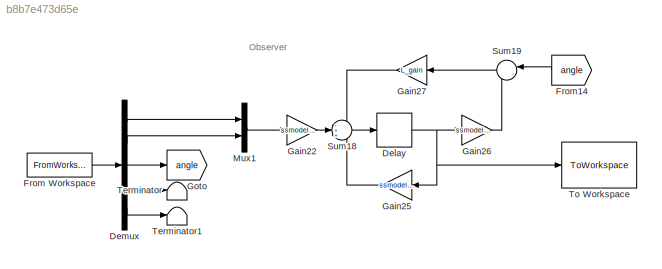
MODEL slx_b8b7e473d65e
KIND model
CONFIG AbsTol = auto
CONFIG EnableMultiTasking = off
CONFIG FixedStep = auto
CONFIG MaxStep = auto
CONFIG MinStep = auto
CONFIG RelTol = 1e-3
CONFIG SampleTimeConstraint = Unconstrained
CONFIG SolverName = VariableStepAuto
CONFIG StartTime = 0.0
CONFIG StopTime = tsim
BLOCK [Delay] Delay
  DelayLength = 1
  InputPortMap = u0
BLOCK [Demux] Demux
  Outputs = 5
BLOCK [FromWorkspace] From Workspace
  SampleTime = Ts_ensaio
  VariableName = Ensaio1
BLOCK [From] From14
  GotoTag = angle
  NameLocation = top
BLOCK [Gain] Gain22
  Gain = ssmodel_discrete_B
  Multiplication = Matrix(K*u)
BLOCK [Gain] Gain25
  Gain = ssmodel_discrete_A
  Multiplication = Matrix(K*u)
  NameLocation = top
BLOCK [Gain] Gain26
  Gain = ssmodel_C
  Multiplication = Matrix(K*u)
BLOCK [Gain] Gain27
  Gain = L_gain
  Multiplication = Matrix(K*u)
  NameLocation = top
BLOCK [Goto] Goto
  GotoTag = angle
  NameLocation = top
BLOCK [Mux] Mux1
  DisplayOption = bar
  Inputs = 2
BLOCK [Sum] Sum18
  Inputs = -++
BLOCK [Sum] Sum19
  Inputs = |-+
  NameLocation = top
BLOCK [Terminator] Terminator
BLOCK [Terminator] Terminator1
BLOCK [ToWorkspace] To Workspace
  FixptAsFi = on
  MaxDataPoints = inf
  SampleTime = Ts_ensaio
  SaveFormat = Structure
  VariableName = ensaio_sim
ANNOTATION (root): Observer
NET Delay:1 -> Gain25:1, Gain26:1, To Workspace:1
LINE Demux:1 -> Mux1:1
LINE Demux:2 -> Mux1:2
LINE Demux:3 -> Goto:1
LINE Demux:4 -> Terminator:1
LINE Demux:5 -> Terminator1:1
LINE From Workspace:1 -> Demux:1
LINE From14:1 -> Sum19:1
LINE Gain22:1 -> Sum18:2
LINE Gain25:1 -> Sum18:3
LINE Gain26:1 -> Sum19:2
LINE Gain27:1 -> Sum18:1
LINE Mux1:1 -> Gain22:1
LINE Sum18:1 -> Delay:1
LINE Sum19:1 -> Gain27:1
note: NET lines group one-source signal fan-out (src -> all destinations, sorted); 1:1 wires keep LINE
